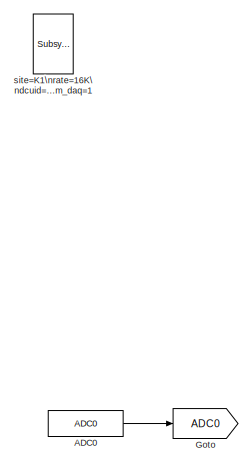
[diagram: root canvas - part 1/3, top left region]
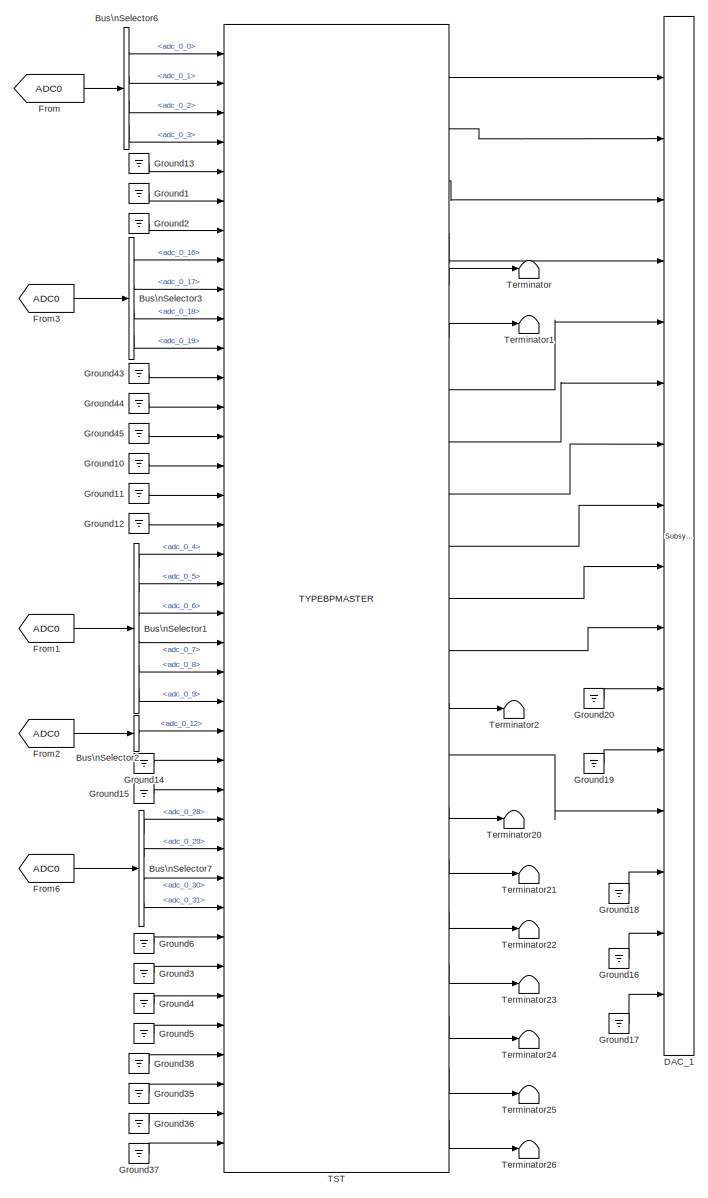
[diagram: root canvas - part 2/3, center side, full height]
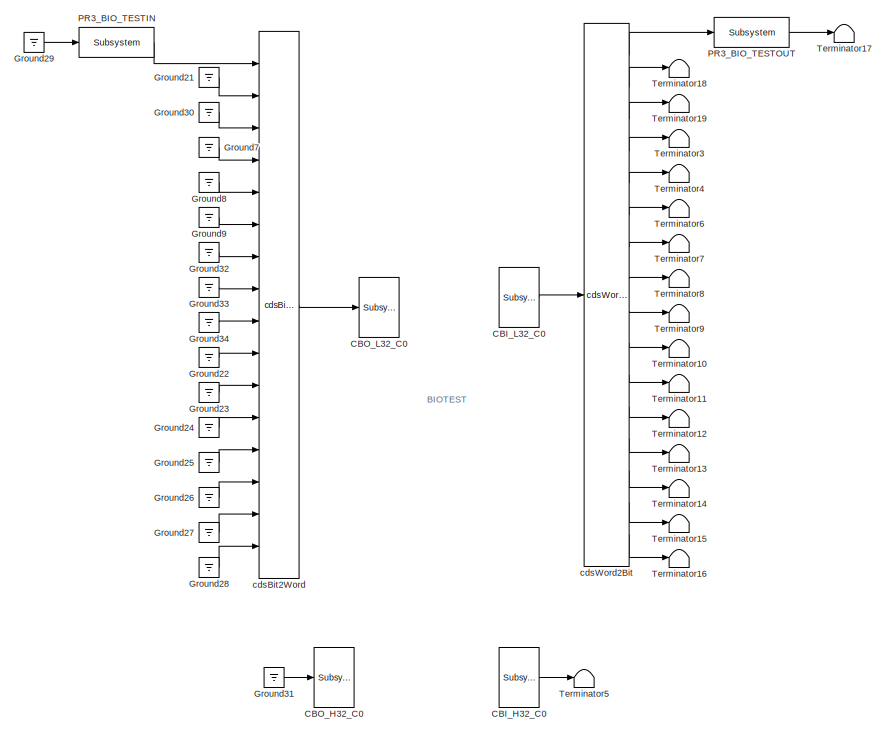
[diagram: root canvas - part 3/3, middle right region]
MODEL k1vistst
KIND model
BLOCK [Reference] ADC0  REF=cdsAdcx0/ADC0
  AttributesFormatString = %<Description>\\n%<Tag>
  Description = type-GSC_16AI64SSA\ncard_num=0
  Ports = [0, 1]
  SID = 455
  SourceBlock = cdsAdcx0/ADC0
  SourceType = SubSystem
  Tag = cdsAdc
BLOCK [BusSelector] Bus\nSelector1
  AttributesFormatString = %<Description>
  Description = ADC Selector
  OutputSignals = adc_0_4,adc_0_5,adc_0_6,adc_0_7,adc_0_8,adc_0_9
  Ports = [1, 6]
  SID = 456
BLOCK [BusSelector] Bus\nSelector2
  AttributesFormatString = %<Description>
  Description = ADC Selector
  OutputSignals = adc_0_12
  Ports = [1, 1]
  SID = 457
BLOCK [BusSelector] Bus\nSelector3
  AttributesFormatString = %<Description>
  Description = ADC Selector
  OutputSignals = adc_0_16,adc_0_17,adc_0_18,adc_0_19
  Ports = [1, 4]
  SID = 458
BLOCK [BusSelector] Bus\nSelector6
  AttributesFormatString = %<Description>
  Description = ADC Selector
  OutputSignals = adc_0_0,adc_0_1,adc_0_2,adc_0_3
  Ports = [1, 4]
  SID = 459
BLOCK [BusSelector] Bus\nSelector7
  AttributesFormatString = %<Description>
  Description = ADC Selector
  OutputSignals = adc_0_28,adc_0_29,adc_0_30,adc_0_31
  Ports = [1, 4]
  SID = 460
BLOCK [Reference] CBI_H32_C0  REF=cdsCDI64/Subsystem
  AttributesFormatString = %<Tag>\\n%<Description>
  Description = card_num=1
  Ports = [0, 1]
  SID = 461
  SourceBlock = cdsCDI64/Subsystem
  SourceType = SubSystem
  Tag = cdsCDI64
BLOCK [Reference] CBI_L32_C0  REF=cdsCDI64/Subsystem
  AttributesFormatString = %<Tag>\\n%<Description>
  Description = card_num=0
  Ports = [0, 1]
  SID = 462
  SourceBlock = cdsCDI64/Subsystem
  SourceType = SubSystem
  Tag = cdsCDI64
BLOCK [Reference] CBO_H32_C0  REF=cdsCDO64/Subsystem
  AttributesFormatString = %<Tag>\\n%<Description>
  Description = card_num=1
  Ports = [1]
  SID = 463
  SourceBlock = cdsCDO64/Subsystem
  SourceType = SubSystem
  Tag = cdsCDO64
BLOCK [Reference] CBO_L32_C0  REF=cdsCDO64/Subsystem
  AttributesFormatString = %<Tag>\\n%<Description>
  Description = card_num=0
  Ports = [1]
  SID = 464
  SourceBlock = cdsCDO64/Subsystem
  SourceType = SubSystem
  Tag = cdsCDO64
BLOCK [Reference] DAC_1  REF=dac/Subsystem  (lib defined in slx_40ef132df75b, slx_b7657ccccc5b, +4 more)
  AttributesFormatString = %<Description>
  Description = type=GSC_16AO16,\ncard_num=0
  Ports = [16]
  SID = 465
  SourceBlock = dac/Subsystem
  SourceType = SubSystem
BLOCK [From] From
  GotoTag = ADC0
  SID = 466
BLOCK [From] From1
  GotoTag = ADC0
  SID = 467
BLOCK [From] From2
  GotoTag = ADC0
  SID = 468
BLOCK [From] From3
  GotoTag = ADC0
  SID = 469
BLOCK [From] From6
  GotoTag = ADC0
  SID = 470
BLOCK [Goto] Goto
  GotoTag = ADC0
  SID = 471
BLOCK [Ground] Ground1
  SID = 472
BLOCK [Ground] Ground10
  SID = 473
BLOCK [Ground] Ground11
  SID = 474
BLOCK [Ground] Ground12
  SID = 475
BLOCK [Ground] Ground13
  SID = 476
BLOCK [Ground] Ground14
  SID = 477
BLOCK [Ground] Ground15
  SID = 478
BLOCK [Ground] Ground16
  SID = 479
BLOCK [Ground] Ground17
  SID = 480
BLOCK [Ground] Ground18
  SID = 481
BLOCK [Ground] Ground19
  SID = 482
BLOCK [Ground] Ground2
  SID = 483
BLOCK [Ground] Ground20
  SID = 484
BLOCK [Ground] Ground21
  SID = 485
BLOCK [Ground] Ground22
  SID = 486
BLOCK [Ground] Ground23
  SID = 487
BLOCK [Ground] Ground24
  SID = 488
BLOCK [Ground] Ground25
  SID = 489
BLOCK [Ground] Ground26
  SID = 490
BLOCK [Ground] Ground27
  SID = 491
BLOCK [Ground] Ground28
  SID = 492
BLOCK [Ground] Ground29
  SID = 493
BLOCK [Ground] Ground3
  SID = 494
BLOCK [Ground] Ground30
  SID = 495
BLOCK [Ground] Ground31
  SID = 496
BLOCK [Ground] Ground32
  SID = 497
BLOCK [Ground] Ground33
  SID = 498
BLOCK [Ground] Ground34
  SID = 499
BLOCK [Ground] Ground35
  SID = 500
BLOCK [Ground] Ground36
  SID = 501
BLOCK [Ground] Ground37
  SID = 502
BLOCK [Ground] Ground38
  SID = 503
BLOCK [Ground] Ground4
  SID = 504
BLOCK [Ground] Ground43
  SID = 505
BLOCK [Ground] Ground44
  SID = 506
BLOCK [Ground] Ground45
  SID = 507
BLOCK [Ground] Ground5
  SID = 508
BLOCK [Ground] Ground6
  SID = 509
BLOCK [Ground] Ground7
  SID = 510
BLOCK [Ground] Ground8
  SID = 511
BLOCK [Ground] Ground9
  SID = 512
BLOCK [Reference] PR3_BIO_TESTIN  REF=cdsEpicsBinIn/Subsystem
  AttributesFormatString = %<Tag>
  Description = Purpose:                                                                            \nCreate an EPICS binary (0 or 1) input channel to the FE realtime controls.          \n                                                                                    \nOperation:                                                                          \nOutputs value from an EPICS ai record. Value is binary i...<+252ch>
  Ports = [1, 1]
  SID = 514
  SourceBlock = cdsEpicsBinIn/Subsystem
  SourceType = SubSystem
  Tag = cdsEpicsBinIn
BLOCK [Reference] PR3_BIO_TESTOUT  REF=cdsEpicsBinIn/Subsystem
  AttributesFormatString = %<Tag>
  Description = Purpose:                                                                            \nCreate an EPICS binary (0 or 1) input channel to the FE realtime controls.          \n                                                                                    \nOperation:                                                                          \nOutputs value from an EPICS ai record. Value is binary i...<+252ch>
  Ports = [1, 1]
  SID = 515
  SourceBlock = cdsEpicsBinIn/Subsystem
  SourceType = SubSystem
  Tag = cdsEpicsBinIn
BLOCK [Reference] TST  REF=TYPEBP_MASTER/TYPEBPMASTER
  AttributesFormatString = %<Description>
  Ports = [38, 21]
  SID = 513
  SourceBlock = TYPEBP_MASTER/TYPEBPMASTER
  SourceType = SubSystem
BLOCK [Terminator] Terminator
  SID = 516
BLOCK [Terminator] Terminator1
  SID = 517
BLOCK [Terminator] Terminator10
  SID = 518
BLOCK [Terminator] Terminator11
  SID = 519
BLOCK [Terminator] Terminator12
  SID = 520
BLOCK [Terminator] Terminator13
  SID = 521
BLOCK [Terminator] Terminator14
  SID = 522
BLOCK [Terminator] Terminator15
  SID = 523
BLOCK [Terminator] Terminator16
  SID = 524
BLOCK [Terminator] Terminator17
  SID = 525
BLOCK [Terminator] Terminator18
  SID = 526
BLOCK [Terminator] Terminator19
  SID = 527
BLOCK [Terminator] Terminator2
  SID = 528
BLOCK [Terminator] Terminator20
  SID = 529
BLOCK [Terminator] Terminator21
  SID = 530
BLOCK [Terminator] Terminator22
  SID = 531
BLOCK [Terminator] Terminator23
  SID = 532
BLOCK [Terminator] Terminator24
  SID = 533
BLOCK [Terminator] Terminator25
  SID = 534
BLOCK [Terminator] Terminator26
  SID = 535
BLOCK [Terminator] Terminator3
  SID = 536
BLOCK [Terminator] Terminator4
  SID = 537
BLOCK [Terminator] Terminator5
  SID = 538
BLOCK [Terminator] Terminator6
  SID = 539
BLOCK [Terminator] Terminator7
  SID = 540
BLOCK [Terminator] Terminator8
  SID = 541
BLOCK [Terminator] Terminator9
  SID = 542
BLOCK [Reference] cdsBit2Word  REF=cdsBit2Word/cdsBit2Word
  AttributesFormatString = %<Tag>
  Description = Forms single 16 bit integer from 16 0/1 inputs.
  Ports = [16, 1]
  SID = 543
  SourceBlock = cdsBit2Word/cdsBit2Word
  SourceType = SubSystem
  Tag = cdsBit2Word
BLOCK [Reference] cdsWord2Bit  REF=cdsWord2Bit/cdsWord2Bit
  AttributesFormatString = cdsWord2Bit
  Description = Generate 16 0/1 outputs from single 16-bit integer input
  Ports = [1, 16]
  SID = 544
  SourceBlock = cdsWord2Bit/cdsWord2Bit
  SourceType = SubSystem
  Tag = cdsWord2Bit
BLOCK [Reference] site=K1\nrate=16K\ndcuid=89\nhost=k1pr0\nspecific_cpu=4\nadcSlave=1\nshmem_daq=1  REF=cdsParameters/Subsystem
  AttributesFormatString = %<Tag>
  Description = Purpose:                                                                                                                                                                                                                                \nProvide system parameters to the FE code generator to properly configure the generated EPICS names, rep rate of the FE controller, and the Data Acquisition node ID fo...<+2934ch>
  Ports = [1, 1]
  SID = 545
  SourceBlock = cdsParameters/Subsystem
  SourceType = SubSystem
  Tag = cdsParameters
ANNOTATION (root): BIOTEST
LINE ADC0:1 -> Goto:1
LINE Bus\nSelector1:1 -> TST:18
LINE Bus\nSelector1:2 -> TST:19
LINE Bus\nSelector1:3 -> TST:20
LINE Bus\nSelector1:4 -> TST:21
LINE Bus\nSelector1:5 -> TST:22
LINE Bus\nSelector1:6 -> TST:23
LINE Bus\nSelector2:1 -> TST:24
LINE Bus\nSelector3:1 -> TST:8
LINE Bus\nSelector3:2 -> TST:9
LINE Bus\nSelector3:3 -> TST:10
LINE Bus\nSelector3:4 -> TST:11
LINE Bus\nSelector6:1 -> TST:1
LINE Bus\nSelector6:2 -> TST:2
LINE Bus\nSelector6:3 -> TST:3
LINE Bus\nSelector6:4 -> TST:4
LINE Bus\nSelector7:1 -> TST:27
LINE Bus\nSelector7:2 -> TST:28
LINE Bus\nSelector7:3 -> TST:29
LINE Bus\nSelector7:4 -> TST:30
LINE CBI_H32_C0:1 -> Terminator5:1
LINE CBI_L32_C0:1 -> cdsWord2Bit:1
LINE From1:1 -> Bus\nSelector1:1
LINE From2:1 -> Bus\nSelector2:1
LINE From3:1 -> Bus\nSelector3:1
LINE From6:1 -> Bus\nSelector7:1
LINE From:1 -> Bus\nSelector6:1
LINE Ground10:1 -> TST:15
LINE Ground11:1 -> TST:16
LINE Ground12:1 -> TST:17
LINE Ground13:1 -> TST:5
LINE Ground14:1 -> TST:25
LINE Ground15:1 -> TST:26
LINE Ground16:1 -> DAC_1:15
LINE Ground17:1 -> DAC_1:16
LINE Ground18:1 -> DAC_1:14
LINE Ground19:1 -> DAC_1:12
LINE Ground1:1 -> TST:6
LINE Ground20:1 -> DAC_1:11
LINE Ground21:1 -> cdsBit2Word:2
LINE Ground22:1 -> cdsBit2Word:10
LINE Ground23:1 -> cdsBit2Word:11
LINE Ground24:1 -> cdsBit2Word:12
LINE Ground25:1 -> cdsBit2Word:13
LINE Ground26:1 -> cdsBit2Word:14
LINE Ground27:1 -> cdsBit2Word:15
LINE Ground28:1 -> cdsBit2Word:16
LINE Ground29:1 -> PR3_BIO_TESTIN:1
LINE Ground2:1 -> TST:7
LINE Ground30:1 -> cdsBit2Word:3
LINE Ground31:1 -> CBO_H32_C0:1
LINE Ground32:1 -> cdsBit2Word:7
LINE Ground33:1 -> cdsBit2Word:8
LINE Ground34:1 -> cdsBit2Word:9
LINE Ground35:1 -> TST:36
LINE Ground36:1 -> TST:37
LINE Ground37:1 -> TST:38
LINE Ground38:1 -> TST:35
LINE Ground3:1 -> TST:32
LINE Ground43:1 -> TST:12
LINE Ground44:1 -> TST:13
LINE Ground45:1 -> TST:14
LINE Ground4:1 -> TST:33
LINE Ground5:1 -> TST:34
LINE Ground6:1 -> TST:31
LINE Ground7:1 -> cdsBit2Word:4
LINE Ground8:1 -> cdsBit2Word:5
LINE Ground9:1 -> cdsBit2Word:6
LINE PR3_BIO_TESTIN:1 -> cdsBit2Word:1
LINE PR3_BIO_TESTOUT:1 -> Terminator17:1
LINE TST:1 -> DAC_1:1
LINE TST:10 -> DAC_1:8
LINE TST:11 -> DAC_1:9
LINE TST:12 -> DAC_1:10
LINE TST:13 -> Terminator2:1
LINE TST:14 -> DAC_1:13
LINE TST:15 -> Terminator20:1
LINE TST:16 -> Terminator21:1
LINE TST:17 -> Terminator22:1
LINE TST:18 -> Terminator23:1
LINE TST:19 -> Terminator24:1
LINE TST:2 -> DAC_1:2
LINE TST:20 -> Terminator25:1
LINE TST:21 -> Terminator26:1
LINE TST:3 -> DAC_1:3
LINE TST:4 -> DAC_1:4
LINE TST:5 -> Terminator:1
LINE TST:6 -> Terminator1:1
LINE TST:7 -> DAC_1:5
LINE TST:8 -> DAC_1:6
LINE TST:9 -> DAC_1:7
LINE cdsBit2Word:1 -> CBO_L32_C0:1
LINE cdsWord2Bit:1 -> PR3_BIO_TESTOUT:1
LINE cdsWord2Bit:10 -> Terminator10:1
LINE cdsWord2Bit:11 -> Terminator11:1
LINE cdsWord2Bit:12 -> Terminator12:1
LINE cdsWord2Bit:13 -> Terminator13:1
LINE cdsWord2Bit:14 -> Terminator14:1
LINE cdsWord2Bit:15 -> Terminator15:1
LINE cdsWord2Bit:16 -> Terminator16:1
LINE cdsWord2Bit:2 -> Terminator18:1
LINE cdsWord2Bit:3 -> Terminator19:1
LINE cdsWord2Bit:4 -> Terminator3:1
LINE cdsWord2Bit:5 -> Terminator4:1
LINE cdsWord2Bit:6 -> Terminator6:1
LINE cdsWord2Bit:7 -> Terminator7:1
LINE cdsWord2Bit:8 -> Terminator8:1
LINE cdsWord2Bit:9 -> Terminator9:1
